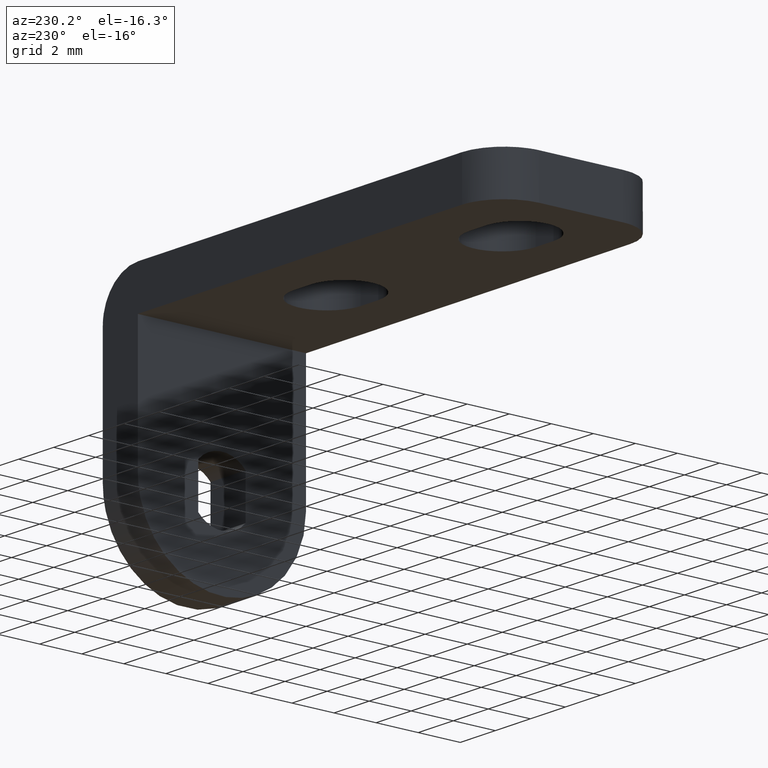
[diagram: clean part render]
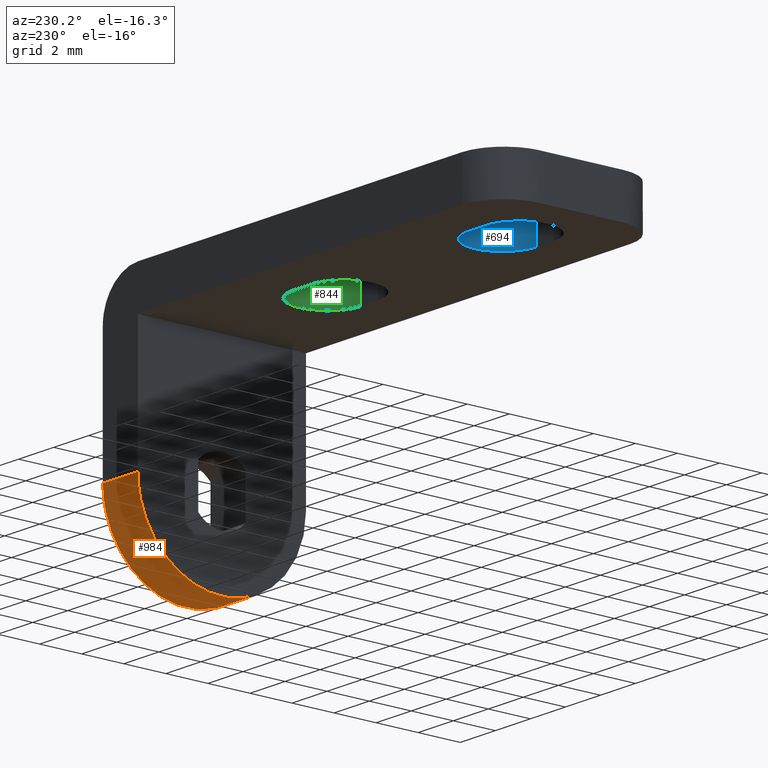
[diagram: same view with three faces highlighted in distinct colors, each labeled with its STEP entity id]
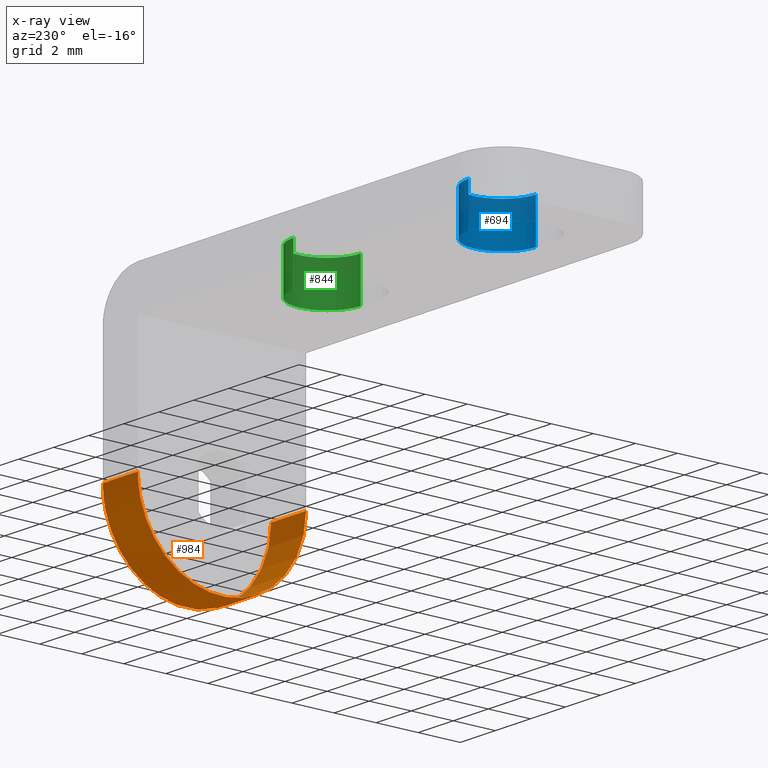
[diagram: x-ray of the same camera — body ghosted, the three highlighted faces saturated]
A machine part, auxiliary view with three faces highlighted in distinct colors.
The next image is the same camera in x-ray (body ghosted, the three faces saturated) — at least one of them is partly hidden behind the body in this view.
Their STEP definitions:

[orange] entity #984 — the highlighted face is a freeform B-spline surface patch.
#180=CARTESIAN_POINT('',(-2.0,3.999999999999940,0.000000698131700));
#181=VERTEX_POINT('',#180);
#189=CARTESIAN_POINT('',(-2.0,-3.999999999999885,-2.449213E-016));
#190=VERTEX_POINT('',#189);
#191=CARTESIAN_POINT('',(-2.0,-3.999999999999885,-2.449213E-016));
#192=CARTESIAN_POINT('',(-2.000000000000002,-4.000054820273503,-0.294528697669436));
#193=CARTESIAN_POINT('',(-1.999999999999997,-3.940087908877969,-0.834463830602775));
#194=CARTESIAN_POINT('',(-2.000000000000009,-3.720037957986159,-1.514537858893509));
#195=CARTESIAN_POINT('',(-1.999999999999960,-3.464132106644943,-2.019023679253217));
#196=CARTESIAN_POINT('',(-2.000000000000020,-3.168247200904762,-2.461866130244077));
#197=CARTESIAN_POINT('',(-1.999999999999985,-2.836610672779317,-2.836915638123589));
#198=CARTESIAN_POINT('',(-2.000000000000023,-2.422086121509341,-3.196705231388449));
#199=CARTESIAN_POINT('',(-1.999999999999953,-1.944632128753551,-3.515748645137961));
#200=CARTESIAN_POINT('',(-2.000000000000013,-1.428652358590203,-3.750175550014358));
#201=CARTESIAN_POINT('',(-2.000000000000036,-0.926061342890244,-3.899248517612289));
#202=CARTESIAN_POINT('',(-1.999999999999950,-0.426265298816485,-3.990730900704372));
#203=CARTESIAN_POINT('',(-2.000000000000060,0.229964258619734,-4.016954725121442));
#204=CARTESIAN_POINT('',(-1.999999999999969,0.897176979092106,-3.917977598478563));
#205=CARTESIAN_POINT('',(-2.000000000000012,1.520556628081535,-3.714126542087710));
#206=CARTESIAN_POINT('',(-1.999999999999995,1.999136146657041,-3.478726857426481));
#207=CARTESIAN_POINT('',(-2.000000000000001,2.461537878592850,-3.167704515486180));
#208=CARTESIAN_POINT('',(-2.0,2.824120569598528,-2.847093247575191));
#209=CARTESIAN_POINT('',(-2.0,3.160528731872900,-2.466642192713344));
#210=CARTESIAN_POINT('',(-2.000000000000006,3.403905666833889,-2.116528134382790));
#211=CARTESIAN_POINT('',(-1.999999999999965,3.634266829761743,-1.691842397540590));
#212=CARTESIAN_POINT('',(-2.000000000000105,3.815327884560553,-1.243095360035882));
#213=CARTESIAN_POINT('',(-1.999999999999746,3.962764862235379,-0.654487913872275));
#214=CARTESIAN_POINT('',(-2.000000000000370,4.000023397858799,-0.237253504403810));
#215=CARTESIAN_POINT('',(-2.0,3.999999999999940,0.000000698131700));
#216=B_SPLINE_CURVE_WITH_KNOTS('',3,(#191,#192,#193,#194,#195,#196,#197,#198,#199,#200,#201,#202,#203,#204,#205,#206,#207,#208,#209,#210,#211,#212,#213,#214,#215),.UNSPECIFIED.,.F.,.U.,(4,1,1,1,1,1,1,1,1,1,1,1,1,1,1,1,1,1,1,1,1,1,4),(0.000000034913221,0.883572076087649,1.619883735277144,2.135305120002263,2.577092520897409,3.215230919459122,3.632482014088840,4.221516339006417,4.933286803160291,5.325988793622190,5.792318006482378,6.455002020937245,7.289491901418334,7.804907263553440,8.418496800233399,8.884824342451179,9.473876836323283,9.866580385363349,10.406542240729239,10.750155645124350,11.314662507973919,11.854631317665630,12.566391025485240),.UNSPECIFIED.);
#217=EDGE_CURVE('',#190,#181,#216,.T.);
#245=CARTESIAN_POINT('',(0.0,3.999999999999940,0.000000698131700));
#246=VERTEX_POINT('',#245);
#261=CARTESIAN_POINT('',(0.0,-3.999999999999885,-2.449213E-016));
#262=VERTEX_POINT('',#261);
#268=CARTESIAN_POINT('',(0.0,-3.999999999999885,-2.449213E-016));
#269=CARTESIAN_POINT('',(0.0,-4.000060343357931,-0.294529724096144));
#270=CARTESIAN_POINT('',(0.0,-3.947336608570312,-0.769011183152444));
#271=CARTESIAN_POINT('',(0.0,-3.756100488018047,-1.413636232546516));
#272=CARTESIAN_POINT('',(0.0,-3.534049368336250,-1.898426549758325));
#273=CARTESIAN_POINT('',(0.0,-3.272253988920117,-2.314650964860801));
#274=CARTESIAN_POINT('',(0.0,-2.996883505533166,-2.660884984748402));
#275=CARTESIAN_POINT('',(0.0,-2.639884037630973,-3.022308632981548));
#276=CARTESIAN_POINT('',(0.0,-2.151047183720705,-3.396639152069455));
#277=CARTESIAN_POINT('',(0.0,-1.560326812276597,-3.703117609810095));
#278=CARTESIAN_POINT('',(0.0,-0.990554560180545,-3.887454643922236));
#279=CARTESIAN_POINT('',(0.0,-0.418202707493278,-3.992206017026926));
#280=CARTESIAN_POINT('',(0.0,0.238270958088430,-4.016422840813642));
#281=CARTESIAN_POINT('',(0.0,0.904969668180547,-3.915423306611527));
#282=CARTESIAN_POINT('',(0.0,1.520554823971316,-3.714125185857975));
#283=CARTESIAN_POINT('',(0.0,2.072772481960655,-3.442523185952398));
#284=CARTESIAN_POINT('',(0.0,2.633193033353521,-3.040082648142345));
#285=CARTESIAN_POINT('',(0.0,3.095017043942915,-2.560916185527439));
#286=CARTESIAN_POINT('',(0.0,3.403903804485637,-2.116526580408693));
#287=CARTESIAN_POINT('',(0.0,3.634266785269257,-1.691842348127715));
#288=CARTESIAN_POINT('',(0.0,3.815327896753934,-1.243095373576178));
#289=CARTESIAN_POINT('',(0.0,3.962764860714477,-0.654487912182828));
#290=CARTESIAN_POINT('',(0.0,4.000023397863825,-0.237253504409639));
#291=CARTESIAN_POINT('',(0.0,3.999999999999940,0.000000698131700));
#292=B_SPLINE_CURVE_WITH_KNOTS('',3,(#268,#269,#270,#271,#272,#273,#274,#275,#276,#277,#278,#279,#280,#281,#282,#283,#284,#285,#286,#287,#288,#289,#290,#291),.UNSPECIFIED.,.F.,.U.,(4,1,1,1,1,1,1,1,1,1,1,1,1,1,1,1,1,1,1,1,1,4),(0.000000034913221,0.883572076087649,1.423532393323802,2.012586189332776,2.478919668675106,2.896161786217231,3.337949072462257,4.000630920995793,4.736935674539793,5.325988793622190,5.792318006482378,6.479546852307418,7.289491901418334,7.804907263553440,8.418496800233399,9.130260252637937,9.866580385363349,10.406542240729239,10.750155645124350,11.314662507973919,11.854631317665630,12.566391025485240),.UNSPECIFIED.);
#293=EDGE_CURVE('',#262,#246,#292,.T.);
#952=CARTESIAN_POINT('',(-2.050000000000000,3.996192886327430,0.174477549461339));
#953=CARTESIAN_POINT('',(0.051250000000000,3.996192886327430,0.174477549461339));
#954=CARTESIAN_POINT('',(-2.049999999999999,4.181667983809532,-4.073600598341277));
#955=CARTESIAN_POINT('',(0.051250000000000,4.181667983809532,-4.073600598341277));
#956=CARTESIAN_POINT('',(-2.050000000000000,-0.069809625749138,-3.999390780625563));
#957=CARTESIAN_POINT('',(0.051250000000000,-0.069809625749138,-3.999390780625563));
#958=CARTESIAN_POINT('',(-2.049999999999999,-4.321287235307808,-3.925180962909848));
#959=CARTESIAN_POINT('',(0.051250000000000,-4.321287235307808,-3.925180962909848));
#960=CARTESIAN_POINT('',(-2.050000000000000,-3.987669334932509,0.313836382911383));
#961=CARTESIAN_POINT('',(0.051250000000000,-3.987669334932509,0.313836382911383));
#969=(BOUNDED_SURFACE()B_SPLINE_SURFACE(1,2,((#952,#954,#956,#958,#960),(#953,#955,#957,#959,#961)),.UNSPECIFIED.,.F.,.F.,.U.)B_SPLINE_SURFACE_WITH_KNOTS((2,2),(3,2,3),(0.0,2.101250000000000),(0.0,6.915531182676755,13.831062365353510),.UNSPECIFIED.)GEOMETRIC_REPRESENTATION_ITEM()RATIONAL_B_SPLINE_SURFACE(((1.0,0.685182990326359,1.0,0.685182990326359,1.0),(1.0,0.685182990326359,1.0,0.685182990326359,1.0)))REPRESENTATION_ITEM('')SURFACE());
#970=ORIENTED_EDGE('',*,*,#217,.T.);
#971=CARTESIAN_POINT('',(-2.0,3.999999999999940,0.000000698131700));
#972=CARTESIAN_POINT('',(0.0,3.999999999999940,0.000000698131700));
#973=QUASI_UNIFORM_CURVE('',1,(#971,#972),.UNSPECIFIED.,.F.,.U.);
#974=EDGE_CURVE('',#181,#246,#973,.T.);
#975=ORIENTED_EDGE('',*,*,#974,.T.);
#976=ORIENTED_EDGE('',*,*,#293,.F.);
#977=CARTESIAN_POINT('',(-2.0,-3.999999999999885,-2.449213E-016));
#978=CARTESIAN_POINT('',(0.0,-3.999999999999885,-2.449213E-016));
#979=QUASI_UNIFORM_CURVE('',1,(#977,#978),.UNSPECIFIED.,.F.,.U.);
#980=EDGE_CURVE('',#190,#262,#979,.T.);
#981=ORIENTED_EDGE('',*,*,#980,.F.);
#982=EDGE_LOOP('',(#970,#975,#976,#981));
#983=FACE_OUTER_BOUND('',#982,.T.);
#984=ADVANCED_FACE('',(#983),#969,.T.);

[blue] entity #694 — the highlighted face is a freeform B-spline surface patch.
#426=CARTESIAN_POINT('',(-18.0,1.600000000000000,6.000008000000221));
#427=VERTEX_POINT('',#426);
#460=CARTESIAN_POINT('',(-18.0,-1.600000000000000,6.000008000000221));
#461=VERTEX_POINT('',#460);
#467=CARTESIAN_POINT('',(-18.0,1.600000000000000,6.000008000000221));
#468=CARTESIAN_POINT('',(-17.895283926906419,1.600012866359081,6.000008000000227));
#469=CARTESIAN_POINT('',(-17.685850736228669,1.579365271589486,6.000008000000213));
#470=CARTESIAN_POINT('',(-17.371173275850619,1.483934298413357,6.000008000000212));
#471=CARTESIAN_POINT('',(-17.088493662389951,1.328341524310031,6.000008000000262));
#472=CARTESIAN_POINT('',(-16.828319937774371,1.106684809103117,6.000008000000241));
#473=CARTESIAN_POINT('',(-16.647324410219241,0.871806742522797,6.000008000000154));
#474=CARTESIAN_POINT('',(-16.507021703085758,0.597254874147813,6.000008000000307));
#475=CARTESIAN_POINT('',(-16.427113135246060,0.339553504559921,6.000008000000100));
#476=CARTESIAN_POINT('',(-16.395818606495830,0.072179689227919,6.000008000000347));
#477=CARTESIAN_POINT('',(-16.403463253046279,-0.176973999896671,6.000008000000101));
#478=CARTESIAN_POINT('',(-16.456346121206071,-0.461134528212149,6.000008000000046));
#479=CARTESIAN_POINT('',(-16.575586742380349,-0.754096289454276,6.000008000000976));
#480=CARTESIAN_POINT('',(-16.734070771287531,-0.988116953924447,6.000007999999082));
#481=CARTESIAN_POINT('',(-16.906912302724962,-1.176485497418205,6.000008000000762));
#482=CARTESIAN_POINT('',(-17.090737200160209,-1.325469231585019,6.000008000000033));
#483=CARTESIAN_POINT('',(-17.330566260151109,-1.461330803175792,6.000008000000265));
#484=CARTESIAN_POINT('',(-17.626955173529922,-1.569441878205885,6.000008000000200));
#485=CARTESIAN_POINT('',(-17.862551187901150,-1.600043820019752,6.000008000000229));
#486=CARTESIAN_POINT('',(-18.0,-1.600000000000000,6.000008000000221));
#487=B_SPLINE_CURVE_WITH_KNOTS('',3,(#467,#468,#469,#470,#471,#472,#473,#474,#475,#476,#477,#478,#479,#480,#481,#482,#483,#484,#485,#486),.UNSPECIFIED.,.F.,.U.,(4,1,1,1,1,1,1,1,1,1,1,1,1,1,1,1,1,4),(0.000000039361163,0.314147988161722,0.628317901213830,0.981753646004469,1.276280947590423,1.649353147349995,1.865336532193332,2.199131665045905,2.454397699241962,2.670367425194189,2.945249346337830,3.318320775027168,3.612853695364102,3.789570195879994,4.084101482303654,4.319720343876368,4.614244244935554,5.026579785222102),.UNSPECIFIED.);
#488=EDGE_CURVE('',#427,#461,#487,.T.);
#636=CARTESIAN_POINT('',(-18.041883117292599,-1.599451719960891,8.050008000000233));
#637=CARTESIAN_POINT('',(-18.041883117292599,-1.599451719960891,5.948758000000219));
#638=CARTESIAN_POINT('',(-16.356412683451364,-1.643587316548642,8.050008000000235));
#639=CARTESIAN_POINT('',(-16.356412683451364,-1.643587316548642,5.948758000000219));
#640=CARTESIAN_POINT('',(-16.400548280039111,0.041883117292597,8.050008000000233));
#641=CARTESIAN_POINT('',(-16.400548280039111,0.041883117292597,5.948758000000219));
#642=CARTESIAN_POINT('',(-16.444683876626858,1.727353551133836,8.050008000000235));
#643=CARTESIAN_POINT('',(-16.444683876626858,1.727353551133836,5.948758000000219));
#644=CARTESIAN_POINT('',(-18.125534553164560,1.595067733973004,8.050008000000233));
#645=CARTESIAN_POINT('',(-18.125534553164560,1.595067733973004,5.948758000000219));
#653=(BOUNDED_SURFACE()B_SPLINE_SURFACE(1,2,((#636,#638,#640,#642,#644),(#637,#639,#641,#643,#645)),.UNSPECIFIED.,.F.,.F.,.U.)B_SPLINE_SURFACE_WITH_KNOTS((2,2),(3,2,3),(0.0,2.101250000000014),(0.0,2.749656998187751,5.499313996375502),.UNSPECIFIED.)GEOMETRIC_REPRESENTATION_ITEM()RATIONAL_B_SPLINE_SURFACE(((1.0,0.688354575693754,1.0,0.688354575693754,1.0),(1.0,0.688354575693754,1.0,0.688354575693754,1.0)))REPRESENTATION_ITEM('')SURFACE());
#654=ORIENTED_EDGE('',*,*,#488,.T.);
#655=CARTESIAN_POINT('',(-18.0,-1.600000000000000,8.000008000000230));
#656=VERTEX_POINT('',#655);
#657=CARTESIAN_POINT('',(-18.0,-1.600000000000000,8.000008000000230));
#658=CARTESIAN_POINT('',(-18.0,-1.600000000000000,6.000008000000221));
#659=QUASI_UNIFORM_CURVE('',1,(#657,#658),.UNSPECIFIED.,.F.,.U.);
#660=EDGE_CURVE('',#656,#461,#659,.T.);
#661=ORIENTED_EDGE('',*,*,#660,.F.);
#662=CARTESIAN_POINT('',(-18.0,1.600000000000000,8.000008000000230));
#663=VERTEX_POINT('',#662);
#664=CARTESIAN_POINT('',(-18.0,1.600000000000000,8.000008000000230));
#665=CARTESIAN_POINT('',(-17.895284856242409,1.600009799783101,8.000008000000234));
#666=CARTESIAN_POINT('',(-17.666212027506880,1.577446547346586,8.000008000000232));
#667=CARTESIAN_POINT('',(-17.352736352838150,1.476027978237303,8.000008000000216));
#668=CARTESIAN_POINT('',(-17.073490732803108,1.315545300259842,8.000008000000255));
#669=CARTESIAN_POINT('',(-16.828318158118979,1.106687128646844,8.000008000000271));
#670=CARTESIAN_POINT('',(-16.647324882654431,0.871806131863233,8.000008000000136));
#671=CARTESIAN_POINT('',(-16.507021626299810,0.597254973673470,8.000008000000355));
#672=CARTESIAN_POINT('',(-16.427113135942811,0.339553503482915,8.000008000000076));
#673=CARTESIAN_POINT('',(-16.395818606384800,0.072179689399524,8.000008000000396));
#674=CARTESIAN_POINT('',(-16.403463253041831,-0.176973999889787,8.000008000000074));
#675=CARTESIAN_POINT('',(-16.456346121208149,-0.461134528215368,8.000007999999998));
#676=CARTESIAN_POINT('',(-16.575586742379642,-0.754096289453170,8.000008000001236));
#677=CARTESIAN_POINT('',(-16.734070771287641,-0.988116953924630,8.000007999998715));
#678=CARTESIAN_POINT('',(-16.906912302724962,-1.176485497418212,8.000008000000950));
#679=CARTESIAN_POINT('',(-17.090737200160209,-1.325469231585017,8.000007999999980));
#680=CARTESIAN_POINT('',(-17.330566260151119,-1.461330803175792,8.000008000000294));
#681=CARTESIAN_POINT('',(-17.626955173529900,-1.569441878205886,8.000008000000191));
#682=CARTESIAN_POINT('',(-17.862551187901161,-1.600043820019751,8.000008000000248));
#683=CARTESIAN_POINT('',(-18.0,-1.600000000000000,8.000008000000230));
#684=B_SPLINE_CURVE_WITH_KNOTS('',3,(#664,#665,#666,#667,#668,#669,#670,#671,#672,#673,#674,#675,#676,#677,#678,#679,#680,#681,#682,#683),.UNSPECIFIED.,.F.,.U.,(4,1,1,1,1,1,1,1,1,1,1,1,1,1,1,1,1,4),(0.000000039361163,0.314147988161722,0.687218958576576,0.981753646004469,1.276280947590423,1.649353147349995,1.865336532193332,2.199131665045905,2.454397699241962,2.670367425194189,2.945249346337830,3.318320775027168,3.612853695364102,3.789570195879994,4.084101482303654,4.319720343876368,4.614244244935554,5.026579785222102),.UNSPECIFIED.);
#685=EDGE_CURVE('',#663,#656,#684,.T.);
#686=ORIENTED_EDGE('',*,*,#685,.F.);
#687=CARTESIAN_POINT('',(-18.0,1.600000000000000,8.000008000000230));
#688=CARTESIAN_POINT('',(-18.0,1.600000000000000,6.000008000000221));
#689=QUASI_UNIFORM_CURVE('',1,(#687,#688),.UNSPECIFIED.,.F.,.U.);
#690=EDGE_CURVE('',#663,#427,#689,.T.);
#691=ORIENTED_EDGE('',*,*,#690,.T.);
#692=EDGE_LOOP('',(#654,#661,#686,#691));
#693=FACE_OUTER_BOUND('',#692,.T.);
#694=ADVANCED_FACE('',(#693),#653,.F.);

[green] entity #844 — the highlighted face is a freeform B-spline surface patch.
#361=CARTESIAN_POINT('',(-8.0,1.600000000000000,6.000008000000221));
#362=VERTEX_POINT('',#361);
#395=CARTESIAN_POINT('',(-8.0,-1.600000000000000,6.000008000000221));
#396=VERTEX_POINT('',#395);
#402=CARTESIAN_POINT('',(-8.0,1.600000000000000,6.000008000000221));
#403=CARTESIAN_POINT('',(-7.862556058045578,1.600038093334496,6.000008000000223));
#404=CARTESIAN_POINT('',(-7.587686445406663,1.564368733130585,6.000008000000229));
#405=CARTESIAN_POINT('',(-7.214808275030460,1.412623632068268,6.000008000000197));
#406=CARTESIAN_POINT('',(-6.943669035918877,1.214054278271830,6.000008000000281));
#407=CARTESIAN_POINT('',(-6.745937973982563,1.003779369235412,6.000008000000198));
#408=CARTESIAN_POINT('',(-6.586115866119441,0.770861466362223,6.000008000000210));
#409=CARTESIAN_POINT('',(-6.458979385246904,0.474294257038368,6.000008000000287));
#410=CARTESIAN_POINT('',(-6.396785004499052,0.151192971904335,6.000008000000124));
#411=CARTESIAN_POINT('',(-6.398650997045169,-0.151139825396995,6.000008000000190));
#412=CARTESIAN_POINT('',(-6.458741075332070,-0.474058738438048,6.000008000000247));
#413=CARTESIAN_POINT('',(-6.581750331164044,-0.765966908327591,6.000008000000214));
#414=CARTESIAN_POINT('',(-6.742941049452401,-0.997775301598609,6.000008000000221));
#415=CARTESIAN_POINT('',(-6.898051877684877,-1.166817009770239,6.000008000000222));
#416=CARTESIAN_POINT('',(-7.110127203938927,-1.343100155849460,6.000008000000220));
#417=CARTESIAN_POINT('',(-7.366020294466217,-1.479869827346179,6.000008000000220));
#418=CARTESIAN_POINT('',(-7.679316157985189,-1.576982984408867,6.000008000000227));
#419=CARTESIAN_POINT('',(-7.875645868028447,-1.600030470729567,6.000008000000220));
#420=CARTESIAN_POINT('',(-8.0,-1.600000000000000,6.000008000000221));
#421=B_SPLINE_CURVE_WITH_KNOTS('',3,(#402,#403,#404,#405,#406,#407,#408,#409,#410,#411,#412,#413,#414,#415,#416,#417,#418,#419,#420),.UNSPECIFIED.,.F.,.U.,(4,1,1,1,1,1,1,1,1,1,1,1,1,1,1,1,4),(0.000000039350478,0.412323790205760,0.824670839630229,1.197739400269708,1.413726806090006,1.688618543447044,2.042059609893278,2.375854882467114,2.670367425189096,2.945249346333211,3.357597013553148,3.612853695360887,3.789570195877295,4.044826689623658,4.437536630948081,4.653525250983105,5.026579785222097),.UNSPECIFIED.);
#422=EDGE_CURVE('',#362,#396,#421,.T.);
#786=CARTESIAN_POINT('',(-8.041883117292599,-1.599451719960891,8.050008000000233));
#787=CARTESIAN_POINT('',(-8.041883117292599,-1.599451719960891,5.948758000000219));
#788=CARTESIAN_POINT('',(-6.356412683451362,-1.643587316548643,8.050008000000235));
#789=CARTESIAN_POINT('',(-6.356412683451362,-1.643587316548643,5.948758000000219));
#790=CARTESIAN_POINT('',(-6.400548280039109,0.041883117292596,8.050008000000233));
#791=CARTESIAN_POINT('',(-6.400548280039109,0.041883117292596,5.948758000000219));
#792=CARTESIAN_POINT('',(-6.444683876626858,1.727353551133835,8.050008000000235));
#793=CARTESIAN_POINT('',(-6.444683876626858,1.727353551133835,5.948758000000219));
#794=CARTESIAN_POINT('',(-8.125534553164551,1.595067733973004,8.050008000000233));
#795=CARTESIAN_POINT('',(-8.125534553164551,1.595067733973004,5.948758000000219));
#803=(BOUNDED_SURFACE()B_SPLINE_SURFACE(1,2,((#786,#788,#790,#792,#794),(#787,#789,#791,#793,#795)),.UNSPECIFIED.,.F.,.F.,.U.)B_SPLINE_SURFACE_WITH_KNOTS((2,2),(3,2,3),(0.0,2.101250000000014),(0.0,2.749656998187750,5.499313996375500),.UNSPECIFIED.)GEOMETRIC_REPRESENTATION_ITEM()RATIONAL_B_SPLINE_SURFACE(((1.0,0.688354575693754,1.0,0.688354575693754,1.0),(1.0,0.688354575693754,1.0,0.688354575693754,1.0)))REPRESENTATION_ITEM('')SURFACE());
#804=ORIENTED_EDGE('',*,*,#422,.T.);
#805=CARTESIAN_POINT('',(-8.0,-1.600000000000000,8.000008000000230));
#806=VERTEX_POINT('',#805);
#807=CARTESIAN_POINT('',(-8.0,-1.600000000000000,8.000008000000230));
#808=CARTESIAN_POINT('',(-8.0,-1.600000000000000,6.000008000000221));
#809=QUASI_UNIFORM_CURVE('',1,(#807,#808),.UNSPECIFIED.,.F.,.U.);
#810=EDGE_CURVE('',#806,#396,#809,.T.);
#811=ORIENTED_EDGE('',*,*,#810,.F.);
#812=CARTESIAN_POINT('',(-8.0,1.600000000000000,8.000008000000230));
#813=VERTEX_POINT('',#812);
#814=CARTESIAN_POINT('',(-8.0,1.600000000000000,8.000008000000230));
#815=CARTESIAN_POINT('',(-7.862556861642377,1.600037489774637,8.000008000000236));
#816=CARTESIAN_POINT('',(-7.587682243407246,1.564371856668870,8.000008000000220));
#817=CARTESIAN_POINT('',(-7.239267857202941,1.422567913991371,8.000008000000264));
#818=CARTESIAN_POINT('',(-7.001819573774905,1.257456554849816,8.000008000000195));
#819=CARTESIAN_POINT('',(-6.824179598779145,1.092440542837986,8.000008000000324));
#820=CARTESIAN_POINT('',(-6.665805944606503,0.899481080853394,8.000008000000168));
#821=CARTESIAN_POINT('',(-6.542137348455580,0.674774734977275,8.000008000000252));
#822=CARTESIAN_POINT('',(-6.447797014150618,0.416129111291059,8.000008000000278));
#823=CARTESIAN_POINT('',(-6.396781785672012,0.151194238005844,8.000008000000094));
#824=CARTESIAN_POINT('',(-6.398653957189946,-0.151138974149090,8.000008000000214));
#825=CARTESIAN_POINT('',(-6.458733566276494,-0.474061582912213,8.000008000000229));
#826=CARTESIAN_POINT('',(-6.581757030610861,-0.765964411029181,8.000008000000234));
#827=CARTESIAN_POINT('',(-6.742938843533175,-0.997776130932341,8.000008000000234));
#828=CARTESIAN_POINT('',(-6.898051933020740,-1.166817025926432,8.000008000000223));
#829=CARTESIAN_POINT('',(-7.110127173822510,-1.343100146642067,8.000008000000241));
#830=CARTESIAN_POINT('',(-7.366020303942171,-1.479869830258048,8.000008000000225));
#831=CARTESIAN_POINT('',(-7.679316156630426,-1.576982983992562,8.000008000000236));
#832=CARTESIAN_POINT('',(-7.875645868028448,-1.600030470729567,8.000008000000232));
#833=CARTESIAN_POINT('',(-8.0,-1.600000000000000,8.000008000000230));
#834=B_SPLINE_CURVE_WITH_KNOTS('',3,(#814,#815,#816,#817,#818,#819,#820,#821,#822,#823,#824,#825,#826,#827,#828,#829,#830,#831,#832,#833),.UNSPECIFIED.,.F.,.U.,(4,1,1,1,1,1,1,1,1,1,1,1,1,1,1,1,1,4),(0.000000039350478,0.412323790205760,0.824670839630229,1.119197839062665,1.276280947582904,1.551176526454080,1.865336532186923,2.042059609893278,2.375854882467114,2.670367425189096,2.945249346333211,3.357597013553148,3.612853695360887,3.789570195877295,4.044826689623658,4.437536630948081,4.653525250983105,5.026579785222097),.UNSPECIFIED.);
#835=EDGE_CURVE('',#813,#806,#834,.T.);
#836=ORIENTED_EDGE('',*,*,#835,.F.);
#837=CARTESIAN_POINT('',(-8.0,1.600000000000000,8.000008000000230));
#838=CARTESIAN_POINT('',(-8.0,1.600000000000000,6.000008000000221));
#839=QUASI_UNIFORM_CURVE('',1,(#837,#838),.UNSPECIFIED.,.F.,.U.);
#840=EDGE_CURVE('',#813,#362,#839,.T.);
#841=ORIENTED_EDGE('',*,*,#840,.T.);
#842=EDGE_LOOP('',(#804,#811,#836,#841));
#843=FACE_OUTER_BOUND('',#842,.T.);
#844=ADVANCED_FACE('',(#843),#803,.F.);